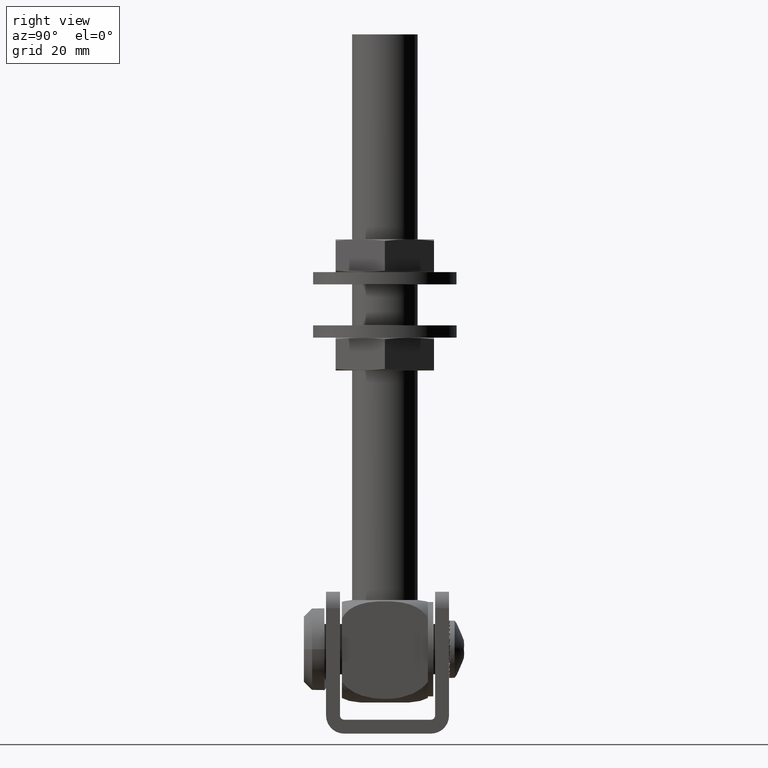
[diagram: clean part render]
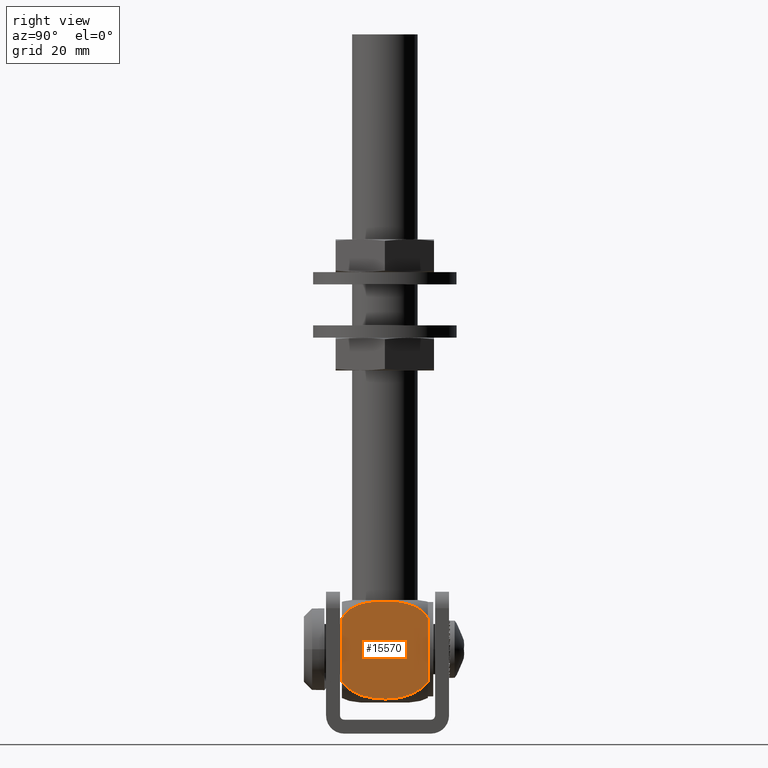
[diagram: same view with one face highlighted and labeled with its STEP entity id]
A machine part, right view. The second image highlights one B-rep face of the part: STEP entity #15570.
In plain terms, the highlighted planar face has unit normal (1, 0, 0).
Its self-contained STEP definition (entity closure, byte-faithful):
#57 = CARTESIAN_POINT ( 'NONE',  ( 9.999999999999998224, -9.869362242900876936, -8.250535314603663295 ) ) ;
#150 = CARTESIAN_POINT ( 'NONE',  ( 10.00000000000000000, 6.803860390362054922, 11.17823956983875000 ) ) ;
#188 = VECTOR ( 'NONE', #5910, 1000.000000000000000 ) ;
#287 = CARTESIAN_POINT ( 'NONE',  ( 10.00000000000000000, 7.562860072033320336, -10.02851379375815632 ) ) ;
#322 = CARTESIAN_POINT ( 'NONE',  ( 10.00000000000000000, 9.812984153268438092, 9.041597763940206534 ) ) ;
#869 = ORIENTED_EDGE ( 'NONE', *, *, #4168, .F. ) ;
#1165 = CARTESIAN_POINT ( 'NONE',  ( 10.00000000000000000, -10.49999999999999645, 7.999999999999996447 ) ) ;
#1543 = CARTESIAN_POINT ( 'NONE',  ( 10.00000000000000178, 10.50000000000000355, -7.500000000000012434 ) ) ;
#1579 = CARTESIAN_POINT ( 'NONE',  ( 10.00000000000000178, -9.318152924843978724, 9.593859256010027536 ) ) ;
#1612 = CARTESIAN_POINT ( 'NONE',  ( 10.00000000000000178, 3.401163311353999852, -11.36993860593332606 ) ) ;
#1636 = CARTESIAN_POINT ( 'NONE',  ( 10.00000000000000355, 10.38551315465793756, 8.220449983546600947 ) ) ;
#2705 = CARTESIAN_POINT ( 'NONE',  ( 9.999999999999996447, -9.332203313772781783, -8.747837291986483521 ) ) ;
#2752 = CARTESIAN_POINT ( 'NONE',  ( 10.00000000000000000, 1.961579052094917897, -11.57579138592145362 ) ) ;
#2787 = CARTESIAN_POINT ( 'NONE',  ( 9.999999999999998224, 0.4729771793340895591, 12.20608161101754874 ) ) ;
#2938 = CARTESIAN_POINT ( 'NONE',  ( 10.00000000000000178, -10.50000000000000355, -7.500000000000012434 ) ) ;
#2956 = CARTESIAN_POINT ( 'NONE',  ( 10.00000000000000178, -8.134204762391226140, 10.50519075158516991 ) ) ;
#3290 = LINE ( 'NONE', #7684, #8224 ) ;
#3741 = DIRECTION ( 'NONE',  ( 0.000000000000000000, -1.387778780781445182E-16, -1.000000000000000000 ) ) ;
#3779 = DIRECTION ( 'NONE',  ( 1.000000000000000000, 0.000000000000000000, 0.000000000000000000 ) ) ;
#3910 = CARTESIAN_POINT ( 'NONE',  ( 10.00000000000000000, 0.000000000000000000, 0.000000000000000000 ) ) ;
#3924 = CARTESIAN_POINT ( 'NONE',  ( 10.00000000000000178, -5.277017380566459082, -10.93380503999687470 ) ) ;
#4030 = CARTESIAN_POINT ( 'NONE',  ( 10.00000000000000000, -4.803089857052667888, -11.06744571227012841 ) ) ;
#4031 = EDGE_LOOP ( 'NONE', ( #11058, #9892, #15247, #869 ) ) ;
#4121 = CARTESIAN_POINT ( 'NONE',  ( 10.00000000000000178, 1.959845516156069722, 12.14988194585818704 ) ) ;
#4147 = CARTESIAN_POINT ( 'NONE',  ( 9.999999999999998224, 5.300641788290322509, -10.92658714108153006 ) ) ;
#4168 = EDGE_CURVE ( 'NONE', #5692, #7409, #13989, .T. ) ;
#4179 = CARTESIAN_POINT ( 'NONE',  ( 10.00000000000000000, 7.702619756817032481, 10.75362195066697346 ) ) ;
#4295 = CARTESIAN_POINT ( 'NONE',  ( 10.00000000000000000, -1.995333730846113429, 12.16416843343188425 ) ) ;
#5078 = VERTEX_POINT ( 'NONE', #7410 ) ;
#5094 = CARTESIAN_POINT ( 'NONE',  ( 10.00000000000000000, -10.25716292873301505, 8.432062701919244674 ) ) ;
#5166 = CARTESIAN_POINT ( 'NONE',  ( 10.00000000000000000, -8.760863660671239117, -9.210202882044935535 ) ) ;
#5365 = CARTESIAN_POINT ( 'NONE',  ( 10.00000000000000178, -3.949260366975632763, 11.95599134561245158 ) ) ;
#5546 = CARTESIAN_POINT ( 'NONE',  ( 10.00000000000000178, -7.703840555941081192, 10.75272843710520654 ) ) ;
#5605 = CARTESIAN_POINT ( 'NONE',  ( 10.00000000000000000, 8.945535198595814919, 9.922324137756007190 ) ) ;
#5692 = VERTEX_POINT ( 'NONE', #1165 ) ;
#5881 = VERTEX_POINT ( 'NONE', #2938 ) ;
#5910 = DIRECTION ( 'NONE',  ( -0.000000000000000000, -4.163336342344337027E-16, 1.000000000000000000 ) ) ;
#6699 = CARTESIAN_POINT ( 'NONE',  ( 10.00000000000000000, 3.435160617866902744, 12.01139923367670193 ) ) ;
#6731 = CARTESIAN_POINT ( 'NONE',  ( 10.00000000000000355, 6.685171214131388595, -10.44729610384664298 ) ) ;
#6819 = CARTESIAN_POINT ( 'NONE',  ( 10.00000000000000000, 0.9710451600579725895, 12.19552953899213499 ) ) ;
#6870 = CARTESIAN_POINT ( 'NONE',  ( 10.00000000000000000, -9.816461343235920012, 9.037439104365002862 ) ) ;
#6939 = CARTESIAN_POINT ( 'NONE',  ( 10.00000000000000355, 9.315605219378971569, 9.596144148012506037 ) ) ;
#7287 = EDGE_CURVE ( 'NONE', #5692, #5881, #3290, .T. ) ;
#7382 = CARTESIAN_POINT ( 'NONE',  ( 10.00000000000000000, 10.49999999999999289, 12.49999999999999467 ) ) ;
#7409 = VERTEX_POINT ( 'NONE', #9542 ) ;
#7410 = CARTESIAN_POINT ( 'NONE',  ( 10.00000000000000178, 10.50000000000000355, -7.500000000000012434 ) ) ;
#7684 = CARTESIAN_POINT ( 'NONE',  ( 10.00000000000000000, -10.49999999999999289, 12.49999999999999289 ) ) ;
#7690 = CARTESIAN_POINT ( 'NONE',  ( 10.00000000000000178, -3.376667646663305877, -11.37409708594293889 ) ) ;
#7812 = CARTESIAN_POINT ( 'NONE',  ( 10.00000000000000178, -6.665695638232025821, -10.45589106012309344 ) ) ;
#7852 = EDGE_CURVE ( 'NONE', #5078, #7409, #8440, .T. ) ;
#8016 = CARTESIAN_POINT ( 'NONE',  ( 10.00000000000000178, 4.897799515445221630, 11.76037002229952044 ) ) ;
#8197 = CARTESIAN_POINT ( 'NONE',  ( 9.999999999999998224, 8.140305336197350528, 10.50108085381377521 ) ) ;
#8224 = VECTOR ( 'NONE', #3741, 1000.000000000000000 ) ;
#8440 = LINE ( 'NONE', #7382, #188 ) ;
#9168 = B_SPLINE_CURVE_WITH_KNOTS ( 'NONE', 3,
 ( #9214, #11703, #57, #2705, #16874, #5166, #15657, #11871, #7812, #3924, #4030, #13204, #7690, #9441, #10668, #10776, #2752, #1612, #10719, #11929, #4147, #6731, #287, #15874, #9493, #1543 ),
 .UNSPECIFIED., .F., .F.,
 ( 4, 2, 2, 2, 2, 2, 2, 2, 2, 2, 2, 2, 4 ),
 ( 0.05510719432500826853, 0.05656136579317182222, 0.05728845152725359907, 0.05801553726133538286, 0.06092388019766251106, 0.06237805166582607169, 0.06383222313398963232, 0.06674056607031676747, 0.06964890900664388873, 0.07110308047480745630, 0.07255725194297102387, 0.07546559487929814514, 0.07837393781562526640 ),
 .UNSPECIFIED. ) ;
#9214 = CARTESIAN_POINT ( 'NONE',  ( 10.00000000000000178, -10.50000000000000355, -7.500000000000012434 ) ) ;
#9244 = CARTESIAN_POINT ( 'NONE',  ( 10.00000000000000000, -10.49999999999999645, 7.999999999999996447 ) ) ;
#9410 = CARTESIAN_POINT ( 'NONE',  ( 10.00000000000000000, 9.970154271583483663, 8.844180206949406653 ) ) ;
#9441 = CARTESIAN_POINT ( 'NONE',  ( 10.00000000000000178, -1.936059514911312007, -11.57807682333209875 ) ) ;
#9493 = CARTESIAN_POINT ( 'NONE',  ( 10.00000000000000000, 9.906227708769490548, -8.273496471334773616 ) ) ;
#9524 = CARTESIAN_POINT ( 'NONE',  ( 9.999999999999996447, -4.920580712570924220, 11.78787622721414863 ) ) ;
#9542 = CARTESIAN_POINT ( 'NONE',  ( 10.00000000000000000, 10.49999999999999645, 7.999999999999996447 ) ) ;
#9892 = ORIENTED_EDGE ( 'NONE', *, *, #10197, .T. ) ;
#10197 = EDGE_CURVE ( 'NONE', #5881, #5078, #9168, .T. ) ;
#10668 = CARTESIAN_POINT ( 'NONE',  ( 9.999999999999998224, -0.9641789267820981557, -11.63989648929288556 ) ) ;
#10719 = CARTESIAN_POINT ( 'NONE',  ( 10.00000000000000000, 3.878472993839287231, -11.28228269293740738 ) ) ;
#10747 = CARTESIAN_POINT ( 'NONE',  ( 10.00000000000000178, -6.349510579836052493, 11.34965218638875406 ) ) ;
#10776 = CARTESIAN_POINT ( 'NONE',  ( 9.999999999999998224, 0.9918905441701784120, -11.63867347069780855 ) ) ;
#10814 = CARTESIAN_POINT ( 'NONE',  ( 10.00000000000000000, 10.49999999999999645, 7.999999999999996447 ) ) ;
#11058 = ORIENTED_EDGE ( 'NONE', *, *, #7287, .T. ) ;
#11703 = CARTESIAN_POINT ( 'NONE',  ( 10.00000000000000000, -10.19994812172769194, -7.890872178592306163 ) ) ;
#11871 = CARTESIAN_POINT ( 'NONE',  ( 10.00000000000000178, -7.543190510965231077, -10.03873678696425742 ) ) ;
#11901 = CARTESIAN_POINT ( 'NONE',  ( 9.999999999999998224, -10.38567963763102675, 8.220129412492614307 ) ) ;
#11929 = CARTESIAN_POINT ( 'NONE',  ( 9.999999999999998224, 4.826944333985802693, -11.06110091654055516 ) ) ;
#11958 = CARTESIAN_POINT ( 'NONE',  ( 10.00000000000000000, -8.946238331276358480, 9.922091814337028026 ) ) ;
#12133 = CARTESIAN_POINT ( 'NONE',  ( 10.00000000000000000, 5.384129531053321038, 11.64516262647468814 ) ) ;
#12190 = CARTESIAN_POINT ( 'NONE',  ( 10.00000000000000178, -1.010878615217247978, 12.20511583478169015 ) ) ;
#12921 = PLANE ( 'NONE',  #14839 ) ;
#13204 = CARTESIAN_POINT ( 'NONE',  ( 9.999999999999998224, -3.854245981271090749, -11.28710972839210314 ) ) ;
#13232 = CARTESIAN_POINT ( 'NONE',  ( 10.00000000000000000, 2.452859468599010384, 12.11475045548699470 ) ) ;
#13475 = CARTESIAN_POINT ( 'NONE',  ( 9.999999999999998224, -6.812204221674036830, 11.17461090823648817 ) ) ;
#13989 = B_SPLINE_CURVE_WITH_KNOTS ( 'NONE', 3,
 ( #9244, #11901, #5094, #16954, #6870, #1579, #11958, #2956, #5546, #13475, #10747, #9524, #5365, #4295, #12190, #2787, #6819, #4121, #13232, #6699, #14741, #8016, #12133, #16030, #150, #4179, #8197, #5605, #6939, #322, #9410, #14802, #1636, #10814 ),
 .UNSPECIFIED., .F., .F.,
 ( 4, 2, 2, 2, 2, 2, 2, 2, 2, 2, 2, 2, 2, 2, 2, 2, 4 ),
 ( 0.04560536568392031809, 0.04634613814385332708, 0.04708691060378634302, 0.04856845552365236796, 0.05005000044351838595, 0.05153154536338441088, 0.05449463520311646769, 0.05745772504284851756, 0.05893926996271453556, 0.06042081488258056743, 0.06190235980244659236, 0.06338390472231261730, 0.06486544964217864917, 0.06634699456204466717, 0.06782853948191069904, 0.06856931194184370804, 0.06931008440177671703 ),
 .UNSPECIFIED. ) ;
#14741 = CARTESIAN_POINT ( 'NONE',  ( 10.00000000000000000, 3.924445690380238716, 11.94316064139937161 ) ) ;
#14802 = CARTESIAN_POINT ( 'NONE',  ( 10.00000000000000000, 10.25647189893194167, 8.433284591062774282 ) ) ;
#14839 = AXIS2_PLACEMENT_3D ( 'NONE', #3910, #3779, #15592 ) ;
#15247 = ORIENTED_EDGE ( 'NONE', *, *, #7852, .T. ) ;
#15570 = ADVANCED_FACE ( 'NONE', ( #15677 ), #12921, .T. ) ;
#15592 = DIRECTION ( 'NONE',  ( 0.000000000000000000, 0.000000000000000000, -1.000000000000000000 ) ) ;
#15657 = CARTESIAN_POINT ( 'NONE',  ( 10.00000000000000000, -8.560799665700665528, -9.355552070372670670 ) ) ;
#15677 = FACE_OUTER_BOUND ( 'NONE', #4031, .T. ) ;
#15874 = CARTESIAN_POINT ( 'NONE',  ( 10.00000000000000000, 9.193742690529701278, -8.927557584774865163 ) ) ;
#16030 = CARTESIAN_POINT ( 'NONE',  ( 9.999999999999998224, 6.338860928364950631, 11.35345733400348323 ) ) ;
#16874 = CARTESIAN_POINT ( 'NONE',  ( 9.999999999999998224, -9.146233283734929387, -8.906534642725212336 ) ) ;
#16954 = CARTESIAN_POINT ( 'NONE',  ( 10.00000000000000000, -9.973028467845653111, 8.840282756229111527 ) ) ;